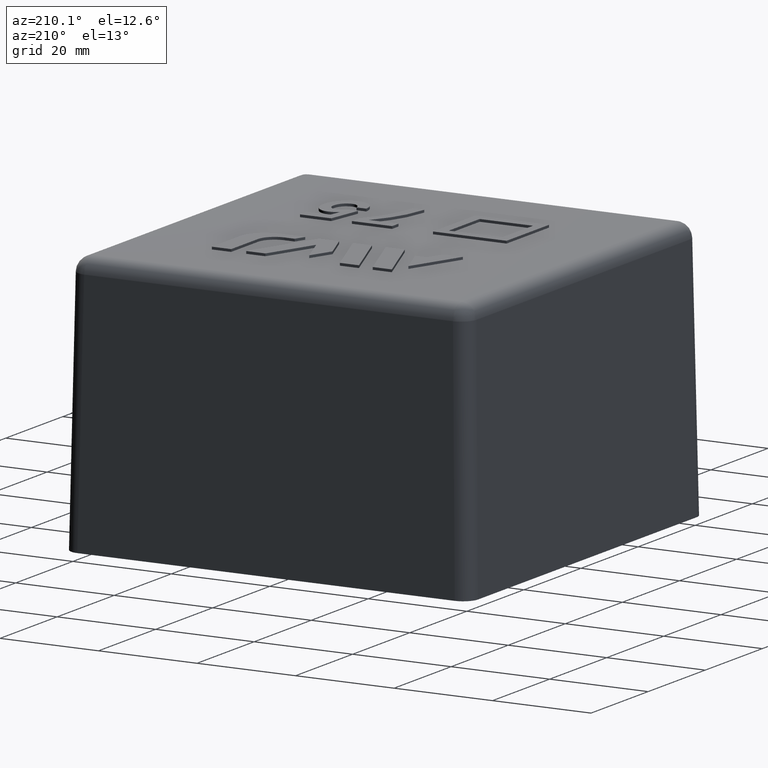
[diagram: clean part render]
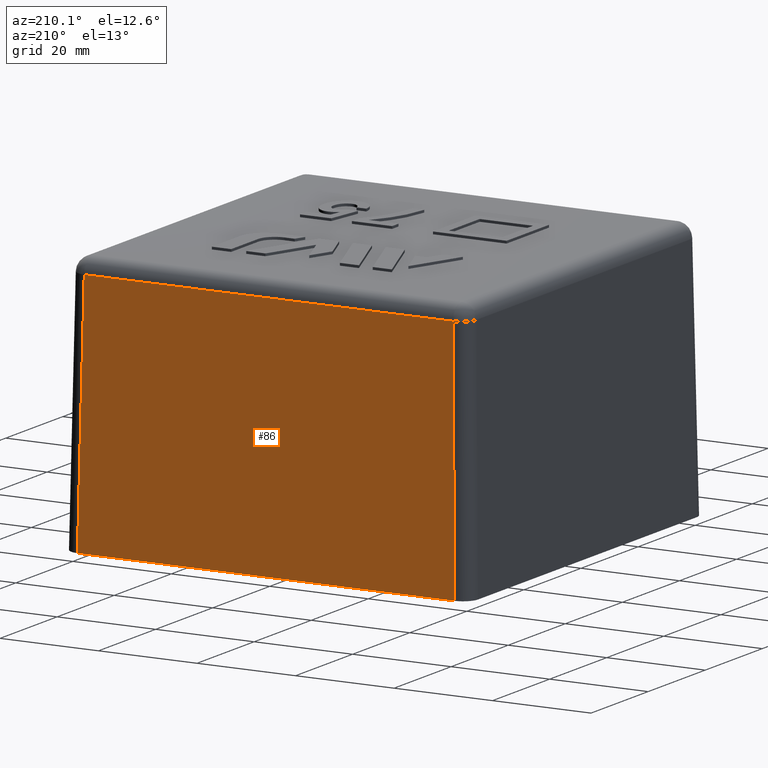
[diagram: same view with one face highlighted and labeled with its STEP entity id]
A machine part, auxiliary view. The second image highlights one B-rep face of the part: STEP entity #86.
In plain terms, the highlighted planar face has unit normal (0, 0.9998, 0.0175).
Its self-contained STEP definition (entity closure, byte-faithful):
#86 = ADVANCED_FACE( '', ( #191 ), #192, .T. );
#191 = FACE_OUTER_BOUND( '', #374, .T. );
#192 = PLANE( '', #375 );
#374 = EDGE_LOOP( '', ( #670, #671, #672, #673 ) );
#375 = AXIS2_PLACEMENT_3D( '', #674, #675, #676 );
#670 = ORIENTED_EDGE( '', *, *, #1301, .T. );
#671 = ORIENTED_EDGE( '', *, *, #1303, .T. );
#672 = ORIENTED_EDGE( '', *, *, #1304, .T. );
#673 = ORIENTED_EDGE( '', *, *, #1305, .T. );
#674 = CARTESIAN_POINT( '', ( -41.3000000000000, 41.3000000000000, 0.000000000000000 ) );
#675 = DIRECTION( '', ( 0.000000000000000, 0.999847695156391, 0.0174524064372835 ) );
#676 = DIRECTION( '', ( 0.000000000000000, -0.0174524064372835, 0.999847695156391 ) );
#1301 = EDGE_CURVE( '', #1577, #1575, #1578, .T. );
#1303 = EDGE_CURVE( '', #1575, #1580, #1581, .F. );
#1304 = EDGE_CURVE( '', #1580, #1582, #1583, .F. );
#1305 = EDGE_CURVE( '', #1582, #1577, #1584, .F. );
#1575 = VERTEX_POINT( '', #2059 );
#1577 = VERTEX_POINT( '', #2061 );
#1578 = LINE( '', #2062, #2063 );
#1580 = VERTEX_POINT( '', #2065 );
#1581 = LINE( '', #2066, #2067 );
#1582 = VERTEX_POINT( '', #2068 );
#1583 = LINE( '', #2069, #2070 );
#1584 = LINE( '', #2071, #2072 );
#2059 = CARTESIAN_POINT( '', ( -37.4267897694574, 40.4263328549266, 50.0523572193119 ) );
#2061 = CARTESIAN_POINT( '', ( -38.3004569145308, 41.3000000000000, 0.000000000000000 ) );
#2062 = CARTESIAN_POINT( '', ( -38.3013702566405, 41.3009133421097, -0.0523253344201978 ) );
#2063 = VECTOR( '', #2450, 1000.00000000000 );
#2065 = CARTESIAN_POINT( '', ( 37.4267897694574, 40.4263328549266, 50.0523572193119 ) );
#2066 = CARTESIAN_POINT( '', ( 37.3753384733353, 40.4263328549266, 50.0523572193118 ) );
#2067 = VECTOR( '', #2454, 1000.00000000000 );
#2068 = CARTESIAN_POINT( '', ( 38.3004569145308, 41.3000000000000, 0.000000000000000 ) );
#2069 = CARTESIAN_POINT( '', ( 38.2762190732398, 41.2757621587090, 1.38858499757201 ) );
#2070 = VECTOR( '', #2455, 1000.00000000000 );
#2071 = CARTESIAN_POINT( '', ( -41.3000000000000, 41.3000000000000, 0.000000000000000 ) );
#2072 = VECTOR( '', #2456, 1000.00000000000 );
#2450 = DIRECTION( '', ( 0.0174497491606827, -0.0174497491606827, 0.999695459881887 ) );
#2454 = DIRECTION( '', ( -1.00000000000000, 0.000000000000000, 0.000000000000000 ) );
#2455 = DIRECTION( '', ( -0.0174497491606827, -0.0174497491606827, 0.999695459881887 ) );
#2456 = DIRECTION( '', ( 1.00000000000000, 0.000000000000000, 0.000000000000000 ) );